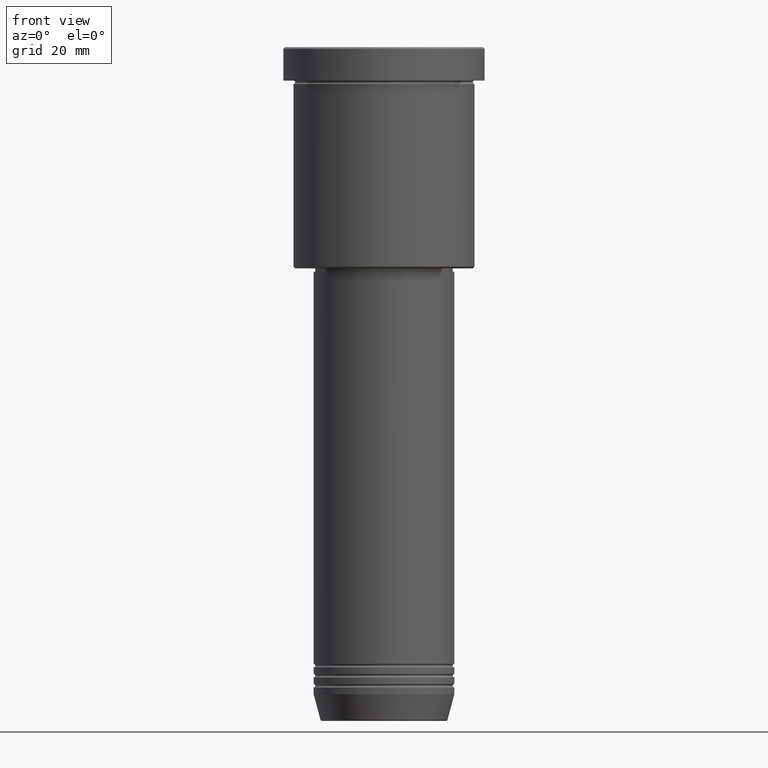
[diagram: clean part render]
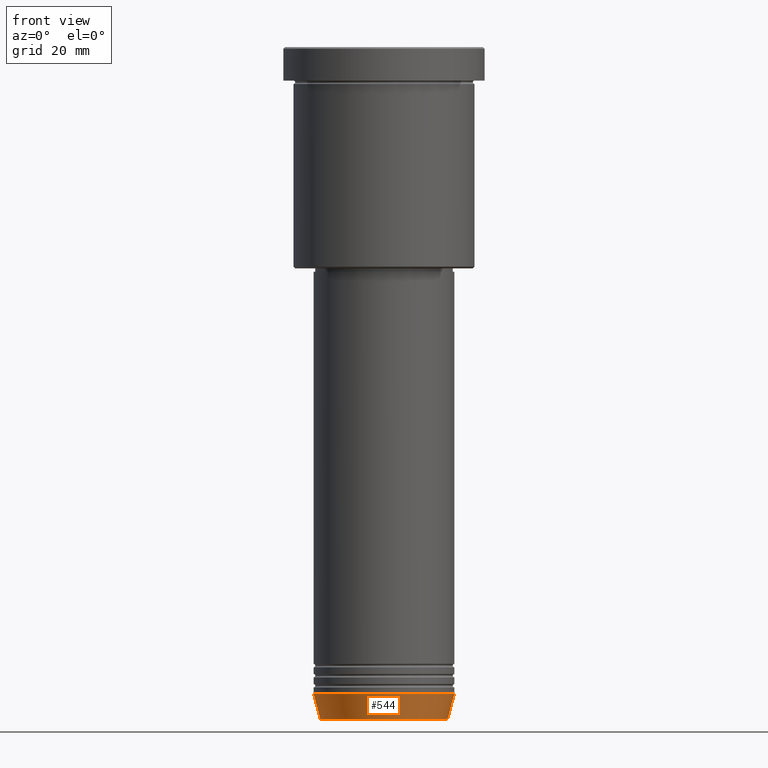
[diagram: same view with one face highlighted and labeled with its STEP entity id]
A machine part, front view. The second image highlights one B-rep face of the part: STEP entity #544.
In plain terms, the highlighted conical surface has half-angle 15 deg.
Its self-contained STEP definition (entity closure, byte-faithful):
#1 = CONICAL_SURFACE ( 'NONE', #489, 21.00000000000000000, 0.2617993877991500740 ) ;
#52 = DIRECTION ( 'NONE',  ( 1.000000000000000000, 0.000000000000000000, 0.000000000000000000 ) ) ;
#67 = CARTESIAN_POINT ( 'NONE',  ( 18.95570587970606624, 0.000000000000000000, -200.6294095225512990 ) ) ;
#71 = CARTESIAN_POINT ( 'NONE',  ( 0.000000000000000000, 0.000000000000000000, -200.6294095225512990 ) ) ;
#72 = DIRECTION ( 'NONE',  ( -0.000000000000000000, -0.000000000000000000, 1.000000000000000000 ) ) ;
#95 = VECTOR ( 'NONE', #1132, 1000.000000000000000 ) ;
#106 = EDGE_LOOP ( 'NONE', ( #677, #426, #744, #954 ) ) ;
#167 = EDGE_CURVE ( 'NONE', #202, #462, #770, .T. ) ;
#202 = VERTEX_POINT ( 'NONE', #453 ) ;
#213 = DIRECTION ( 'NONE',  ( 1.000000000000000000, 0.000000000000000000, 0.000000000000000000 ) ) ;
#234 = VERTEX_POINT ( 'NONE', #658 ) ;
#239 = CARTESIAN_POINT ( 'NONE',  ( 0.000000000000000000, 0.000000000000000000, -193.0000000000000284 ) ) ;
#266 = FACE_OUTER_BOUND ( 'NONE', #106, .T. ) ;
#297 = CIRCLE ( 'NONE', #444, 21.00000000000000000 ) ;
#317 = VERTEX_POINT ( 'NONE', #329 ) ;
#329 = CARTESIAN_POINT ( 'NONE',  ( -21.00000000000000000, 2.571758278209441661E-15, -193.0000000000000284 ) ) ;
#337 = CARTESIAN_POINT ( 'NONE',  ( 0.000000000000000000, 0.000000000000000000, -193.0000000000000284 ) ) ;
#351 = DIRECTION ( 'NONE',  ( 1.000000000000000000, 0.000000000000000000, 0.000000000000000000 ) ) ;
#426 = ORIENTED_EDGE ( 'NONE', *, *, #167, .T. ) ;
#434 = EDGE_CURVE ( 'NONE', #317, #234, #297, .T. ) ;
#444 = AXIS2_PLACEMENT_3D ( 'NONE', #337, #1093, #351 ) ;
#453 = CARTESIAN_POINT ( 'NONE',  ( -18.95570587970606624, 2.446581365662755730E-15, -200.6294095225512990 ) ) ;
#462 = VERTEX_POINT ( 'NONE', #67 ) ;
#477 = CARTESIAN_POINT ( 'NONE',  ( -21.00000000000000000, 2.571758278209441661E-15, -193.0000000000000284 ) ) ;
#489 = AXIS2_PLACEMENT_3D ( 'NONE', #239, #72, #213 ) ;
#544 = ADVANCED_FACE ( 'NONE', ( #266 ), #1, .T. ) ;
#548 = EDGE_CURVE ( 'NONE', #202, #317, #583, .T. ) ;
#583 = LINE ( 'NONE', #477, #95 ) ;
#658 = CARTESIAN_POINT ( 'NONE',  ( 21.00000000000000000, 0.000000000000000000, -193.0000000000000284 ) ) ;
#677 = ORIENTED_EDGE ( 'NONE', *, *, #548, .F. ) ;
#744 = ORIENTED_EDGE ( 'NONE', *, *, #1169, .T. ) ;
#770 = CIRCLE ( 'NONE', #956, 18.95570587970606624 ) ;
#865 = DIRECTION ( 'NONE',  ( 0.2588190451025213501, 0.000000000000000000, 0.9659258262890680902 ) ) ;
#875 = CARTESIAN_POINT ( 'NONE',  ( 21.00000000000000000, 0.000000000000000000, -193.0000000000000284 ) ) ;
#879 = LINE ( 'NONE', #875, #1017 ) ;
#954 = ORIENTED_EDGE ( 'NONE', *, *, #434, .F. ) ;
#956 = AXIS2_PLACEMENT_3D ( 'NONE', #71, #1047, #52 ) ;
#1017 = VECTOR ( 'NONE', #865, 1000.000000000000000 ) ;
#1047 = DIRECTION ( 'NONE',  ( -0.000000000000000000, -0.000000000000000000, 1.000000000000000000 ) ) ;
#1093 = DIRECTION ( 'NONE',  ( -0.000000000000000000, -0.000000000000000000, 1.000000000000000000 ) ) ;
#1132 = DIRECTION ( 'NONE',  ( -0.2588190451025213501, 3.169619151431772337E-17, 0.9659258262890680902 ) ) ;
#1169 = EDGE_CURVE ( 'NONE', #462, #234, #879, .T. ) ;